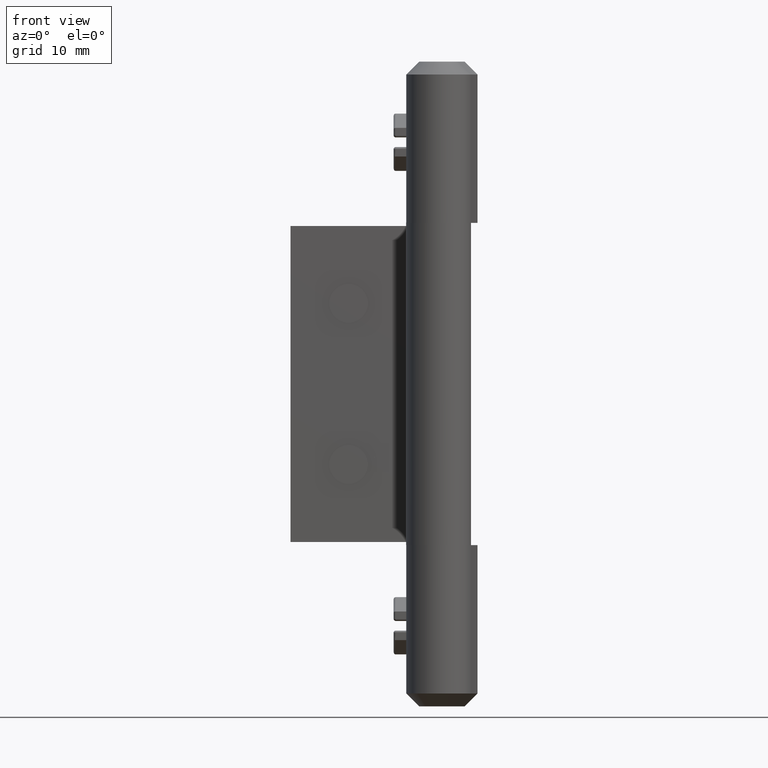
[diagram: clean part render]
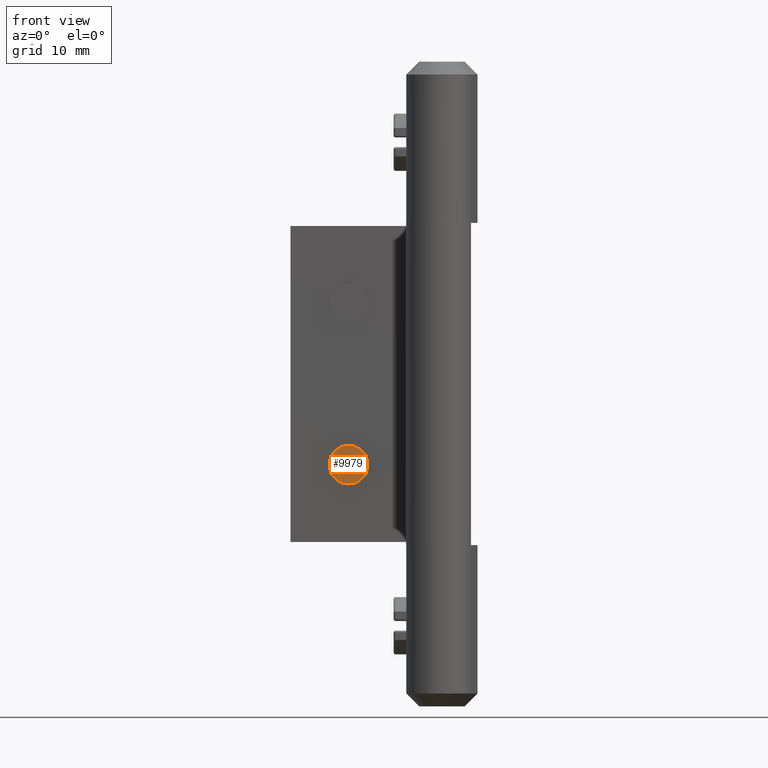
[diagram: same view with one face highlighted and labeled with its STEP entity id]
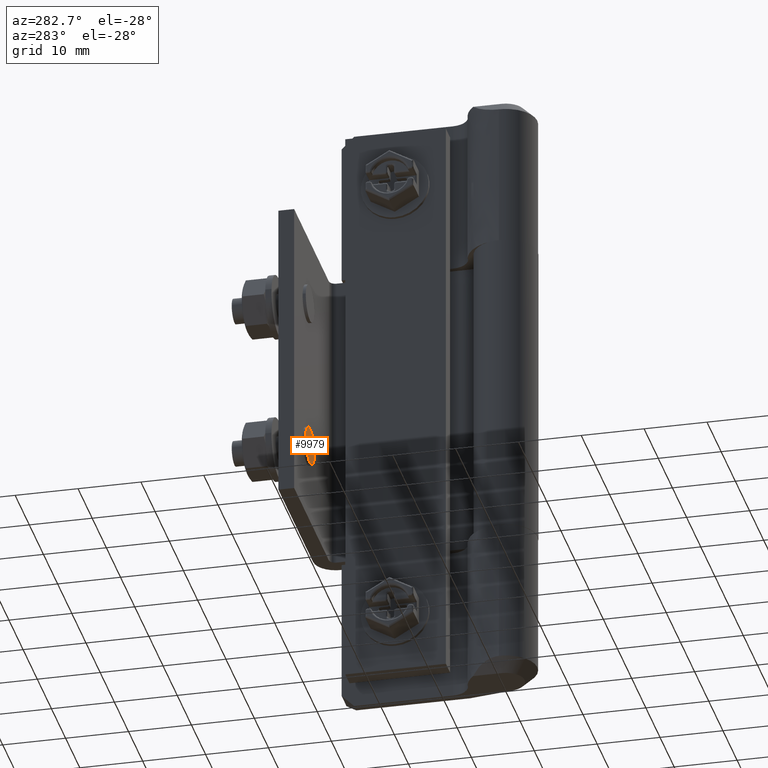
[diagram: same view with one face highlighted and labeled with its STEP entity id]
A machine part, front view. The second image highlights one B-rep face of the part: STEP entity #9979.
A second angle (auxiliary view) of the same face is appended — the face is thin or edge-on in the first view.
In plain terms, the highlighted face is a freeform B-spline surface patch.
Its self-contained STEP definition (entity closure, byte-faithful):
#9768=CARTESIAN_POINT('',(-13.950000674417300,28.000000171419700,40.500001923646863));
#9769=VERTEX_POINT('',#9768);
#9770=CARTESIAN_POINT('',(-16.940752817640689,28.000000171419700,37.735379079887529));
#9771=VERTEX_POINT('',#9770);
#9772=CARTESIAN_POINT('',(-13.950000674417300,28.000000171419700,40.500001923646863));
#9773=CARTESIAN_POINT('',(-16.723172280422823,28.000000171419693,40.500001923646870));
#9774=CARTESIAN_POINT('',(-16.940752817640696,28.000000171419700,37.735379079887522));
#9782=(BOUNDED_CURVE()B_SPLINE_CURVE(2,(#9772,#9773,#9774),.UNSPECIFIED.,.F.,.U.)B_SPLINE_CURVE_WITH_KNOTS((3,3),(0.500000000000000,0.736331300590389),.UNSPECIFIED.)CURVE()GEOMETRIC_REPRESENTATION_ITEM()RATIONAL_B_SPLINE_CURVE((1.0,0.723120658654846,0.969723356083376))REPRESENTATION_ITEM(''));
#9783=EDGE_CURVE('',#9769,#9771,#9782,.T.);
#9785=CARTESIAN_POINT('',(-10.959248531193911,28.000000171419700,37.264624482421482));
#9786=VERTEX_POINT('',#9785);
#9787=CARTESIAN_POINT('',(-10.959248531193907,28.000000171419703,37.264624482421482));
#9788=CARTESIAN_POINT('',(-10.950000531924941,28.000000171419703,37.382131454161581));
#9789=CARTESIAN_POINT('',(-10.950000531924941,28.000000171419700,37.500001781154502));
#9790=CARTESIAN_POINT('',(-10.950000531924939,28.000000171419696,40.500001923646856));
#9791=CARTESIAN_POINT('',(-13.950000674417300,28.000000171419700,40.500001923646863));
#9799=(BOUNDED_CURVE()B_SPLINE_CURVE(2,(#9787,#9788,#9789,#9790,#9791),.UNSPECIFIED.,.F.,.U.)B_SPLINE_CURVE_WITH_KNOTS((3,2,3),(0.236331300590390,0.250000000000000,0.500000000000000),.UNSPECIFIED.)CURVE()GEOMETRIC_REPRESENTATION_ITEM()RATIONAL_B_SPLINE_CURVE((0.969723356083378,0.983986122531703,1.0,0.707106781186547,1.0))REPRESENTATION_ITEM(''));
#9800=EDGE_CURVE('',#9786,#9769,#9799,.T.);
#9867=CARTESIAN_POINT('',(-13.950000674417300,28.000000171419700,34.500001638662141));
#9868=VERTEX_POINT('',#9867);
#9869=CARTESIAN_POINT('',(-16.940752817640703,28.000000171419703,37.735379079887529));
#9870=CARTESIAN_POINT('',(-16.950000816909654,28.000000171419700,37.617872108147438));
#9871=CARTESIAN_POINT('',(-16.950000816909661,28.000000171419700,37.500001781154502));
#9872=CARTESIAN_POINT('',(-16.950000816909661,28.000000171419696,34.500001638662141));
#9873=CARTESIAN_POINT('',(-13.950000674417300,28.000000171419700,34.500001638662141));
#9881=(BOUNDED_CURVE()B_SPLINE_CURVE(2,(#9869,#9870,#9871,#9872,#9873),.UNSPECIFIED.,.F.,.U.)B_SPLINE_CURVE_WITH_KNOTS((3,2,3),(0.736331300590390,0.750000000000000,1.0),.UNSPECIFIED.)CURVE()GEOMETRIC_REPRESENTATION_ITEM()RATIONAL_B_SPLINE_CURVE((0.969723356083378,0.983986122531703,1.0,0.707106781186547,1.0))REPRESENTATION_ITEM(''));
#9882=EDGE_CURVE('',#9771,#9868,#9881,.T.);
#9916=CARTESIAN_POINT('',(-13.950000674417300,28.000000171419700,34.500001638662141));
#9917=CARTESIAN_POINT('',(-11.176829068411756,28.000000171419703,34.500001638662134));
#9918=CARTESIAN_POINT('',(-10.959248531193909,28.000000171419696,37.264624482421482));
#9926=(BOUNDED_CURVE()B_SPLINE_CURVE(2,(#9916,#9917,#9918),.UNSPECIFIED.,.F.,.U.)B_SPLINE_CURVE_WITH_KNOTS((3,3),(0.0,0.236331300590390),.UNSPECIFIED.)CURVE()GEOMETRIC_REPRESENTATION_ITEM()RATIONAL_B_SPLINE_CURVE((1.0,0.723120658654844,0.969723356083378))REPRESENTATION_ITEM(''));
#9927=EDGE_CURVE('',#9868,#9786,#9926,.T.);
#9968=CARTESIAN_POINT('',(-17.248786025348188,28.000000171419650,34.200299804276462));
#9969=CARTESIAN_POINT('',(-10.651216503658439,28.000000171419650,34.200299804276462));
#9970=CARTESIAN_POINT('',(-17.248786025348188,28.000000171419650,40.799703972609279));
#9971=CARTESIAN_POINT('',(-10.651216503658439,28.000000171419650,40.799703972609279));
#9972=B_SPLINE_SURFACE_WITH_KNOTS('',1,1,((#9968,#9970),(#9969,#9971)),.UNSPECIFIED.,.F.,.F.,.U.,(2,2),(2,2),(0.0,6.597569521689749),(0.0,6.599404168332825),.UNSPECIFIED.);
#9973=ORIENTED_EDGE('',*,*,#9927,.T.);
#9974=ORIENTED_EDGE('',*,*,#9800,.T.);
#9975=ORIENTED_EDGE('',*,*,#9783,.T.);
#9976=ORIENTED_EDGE('',*,*,#9882,.T.);
#9977=EDGE_LOOP('',(#9973,#9974,#9975,#9976));
#9978=FACE_OUTER_BOUND('',#9977,.T.);
#9979=ADVANCED_FACE('',(#9978),#9972,.T.);